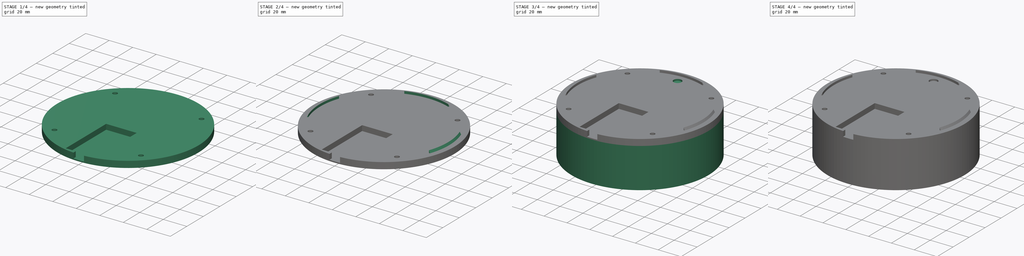
[diagram: build sequence overview — one tinted view per stage of 4, left to right]
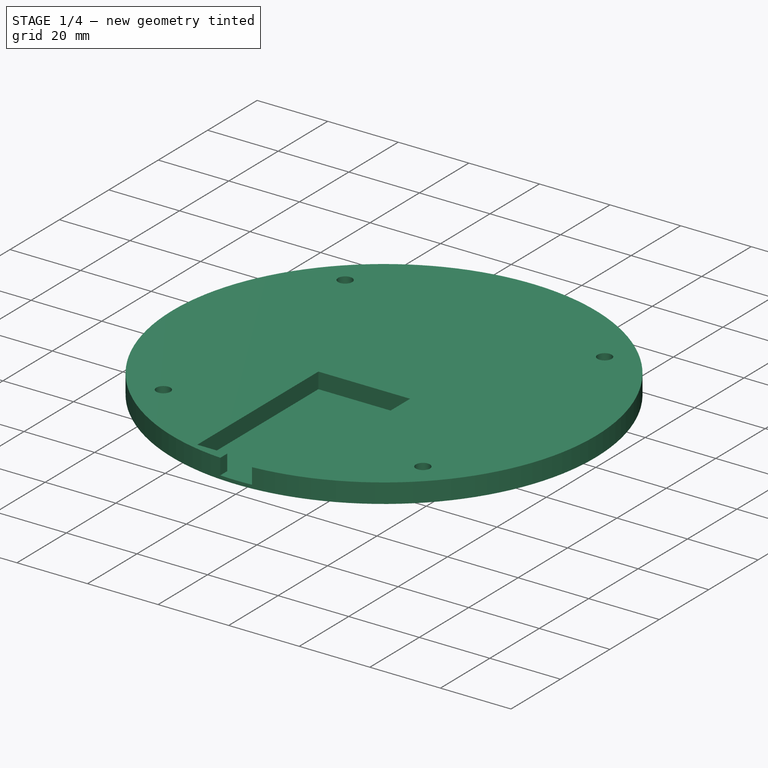
[diagram: stage 1 of 4 — iso view after this stage's code; geometry added in this stage tinted green]
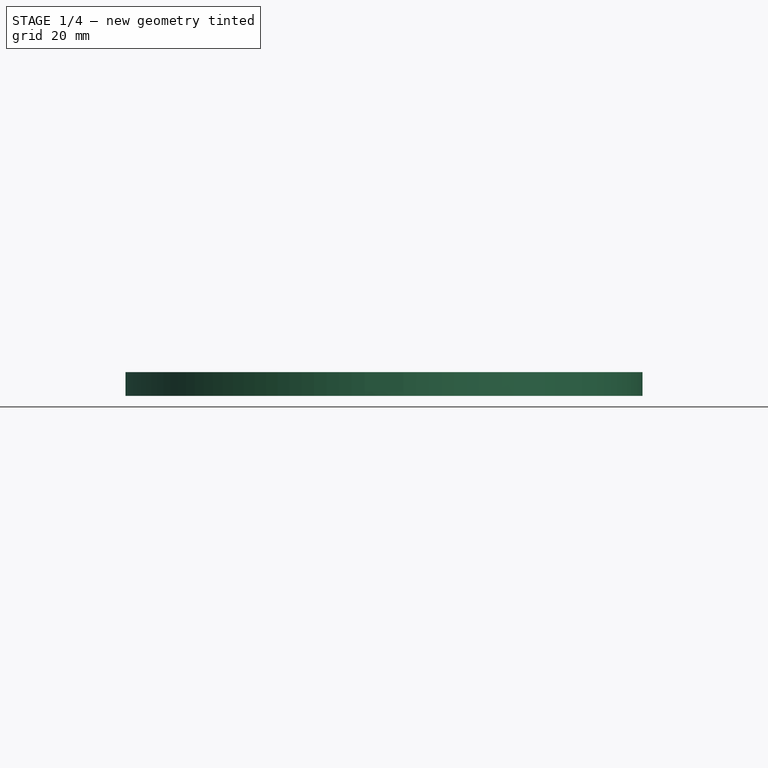
[diagram: stage 1 of 4 — front view after this stage's code; geometry added in this stage tinted green]
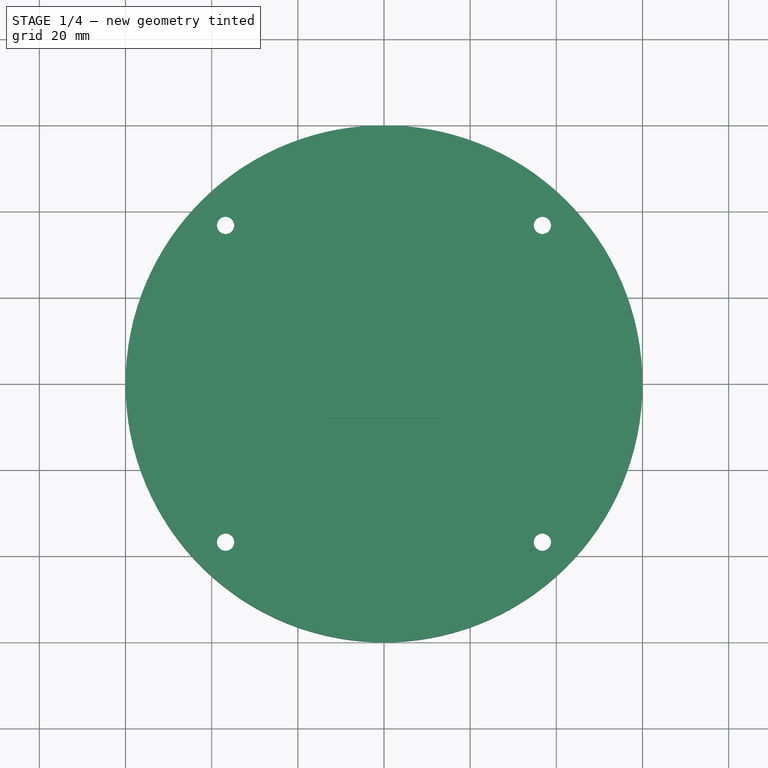
[diagram: stage 1 of 4 — top view after this stage's code; geometry added in this stage tinted green]
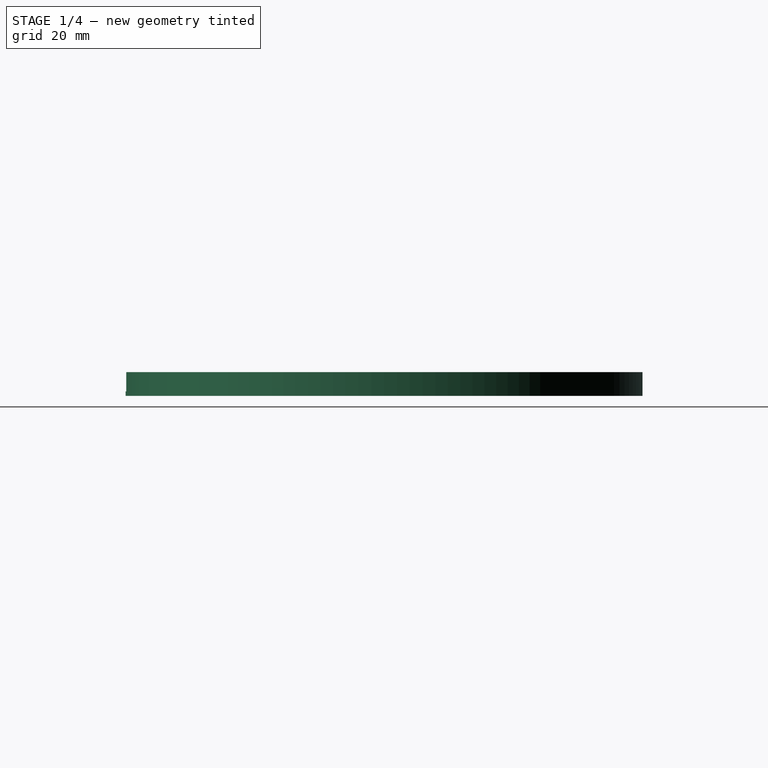
[diagram: stage 1 of 4 — right view after this stage's code; geometry added in this stage tinted green]
FCSTD DOCUMENT  (FreeCAD 0.18R16131 (Git))
Label: ledcircle
License: All rights reserved
LicenseURL: http://en.wikipedia.org/wiki/All_rights_reserved
objects: Sketcher::SketchObject×11, PartDesign::Pad×5, PartDesign::Pocket×4, PartDesign::PolarPattern×3, PartDesign::Body×2, PartDesign::Hole×1, PartDesign::ShapeBinder×1, PartDesign::Groove×1, App::Part×1
note: 39 computed .brp shape members not serialized (recipe doc carries the construction recipe); baked Part::Feature solids carry a one-line shape summary decoded from their .brp

FEATURE [Sketcher::SketchObject] Sketch
  MapMode = 5
  Support = -> [XY_Plane]
  sketch-geometry (1):
    g0: Circle CenterX=0 CenterY=0 CenterZ=0 NormalX=0 NormalY=0 NormalZ=1 AngleXU=0 Radius=60
  constraints (2):
    c: Coincident(g0,g-1)
    c: Diameter(g0) = 120
FEATURE [PartDesign::Pad] Pad
  Length = 5.5
  Length2 = 100
  Profile = -> Sketch
  Type = 0
FEATURE [Sketcher::SketchObject] Sketch001
  ExternalGeometry = -> [Pad]
  MapMode = 5
  Placement = pos=(0,0,5.5) rot=(0,0,1;0rad)
  Support = -> [Pad]
  sketch-geometry (12):
    g0: LineSegment StartX=-13 StartY=-8 StartZ=0 EndX=13 EndY=-8 EndZ=0
    g1: LineSegment StartX=13 StartY=-8 StartZ=0 EndX=13 EndY=-57 EndZ=0
    g2: LineSegment StartX=-13 StartY=-57 StartZ=0 EndX=-13 EndY=-8 EndZ=0
    g3: GeomPoint X=0 Y=-8 Z=0
    g4: GeomPoint X=0 Y=-60 Z=0
    g5: LineSegment [constr] StartX=-4.5 StartY=-57 StartZ=0 EndX=4.5 EndY=-57 EndZ=0
    g6: LineSegment StartX=4.5 StartY=-57 StartZ=0 EndX=4.5 EndY=-60 EndZ=0
    g7: LineSegment StartX=4.5 StartY=-60 StartZ=0 EndX=-4.5 EndY=-60 EndZ=0
    g8: LineSegment StartX=-4.5 StartY=-60 StartZ=0 EndX=-4.5 EndY=-57 EndZ=0
    g9: GeomPoint X=0 Y=-60 Z=0
    g10: LineSegment StartX=-4.5 StartY=-57 StartZ=0 EndX=-13 EndY=-57 EndZ=0
    g11: LineSegment StartX=4.5 StartY=-57 StartZ=0 EndX=13 EndY=-57 EndZ=0
  constraints (30):
    c: Coincident(g0,g1)
    c: Coincident(g10,g2)
    c: Coincident(g2,g0)
    c: Horizontal(g0)
    c: Vertical(g1)
    c: Vertical(g2)
    c: DistanceX(g0,g0) = 26
    c: DistanceY(g1,g1) = 49
    c: PointOnObject(g3,g-2)
    c: Symmetric(g0,g0,g3)
    c: PointOnObject(g4,g-2)
    c: PointOnObject(g4,g-3)
    c: DistanceY(g4,g1) = 3
    c: Coincident(g5,g6)
    c: Coincident(g6,g7)
    c: Coincident(g7,g8)
    c: Horizontal(g5)
    c: Horizontal(g7)
    c: Vertical(g6)
    c: Vertical(g8)
    c: PointOnObject(g9,g-2)
    c: Symmetric(g7,g7,g9)
    c: Coincident(g11,g6)
    c: Coincident(g11,g1)
    c: Horizontal(g11)
    c: Coincident(g8,g10)
    c: Coincident(g5,g8)
    c: Horizontal(g10)
    c: PointOnObject(g4,g7)
    c: DistanceX(g5,g5) = 9
FEATURE [PartDesign::Pocket] Pocket
  BaseFeature = -> Pad
  Length = 4.5
  Length2 = 100
  Profile = -> Sketch001
  Type = 0
FEATURE [Sketcher::SketchObject] Sketch002
  ExternalGeometry = -> [Pocket]
  MapMode = 5
  Placement = pos=(0,0,0) rot=(1,0,0;3.14159rad)
  Support = -> [Pocket]
  sketch-geometry (3):
    g0: Circle CenterX=-36.7696 CenterY=36.7696 CenterZ=0 NormalX=0 NormalY=0 NormalZ=1 AngleXU=0 Radius=3.5
    g1: LineSegment [constr] StartX=-42.4264 StartY=42.4264 StartZ=0 EndX=-36.7696 EndY=36.7696 EndZ=0
    g2: LineSegment [constr] StartX=-36.7696 StartY=36.7696 StartZ=0 EndX=0 EndY=0 EndZ=0
  constraints (8):
    c: PointOnObject(g1,g-3)
    c: Coincident(g1,g0)
    c: Perpendicular(g-3,g1)
    c: Distance(g1) = 8
    c: Diameter(g0) = 7
    c: Coincident(g2,g0)
    c: Coincident(g2,g-1)
    c: Angle(g-1,g2) = 2.35619
FEATURE [PartDesign::Hole] Hole
  BaseFeature = -> Pocket
  Depth = 25
  DepthType = 1
  Diameter = 4
  DrillPoint = 1
  DrillPointAngle = 118
  HoleCutCountersinkAngle = 90
  HoleCutDepth = 4
  HoleCutDiameter = 7
  HoleCutType = 1
  ModelActualThread = false
  Profile = -> Sketch002
  Tapered = false
  TaperedAngle = 90
  ThreadAngle = 0
  ThreadClass = 0
  ThreadCutOffInner = 0
  ThreadCutOffOuter = 0
  ThreadDirection = 0
  ThreadFit = 0
  ThreadPitch = 0
  ThreadSize = 0
  ThreadType = 0
  Threaded = false
FEATURE [PartDesign::PolarPattern] PolarPattern
  Angle = 360
  Axis = -> Sketch002 [N_Axis]
  BaseFeature = -> Hole
  Occurrences = 4
  Originals = -> [Hole]
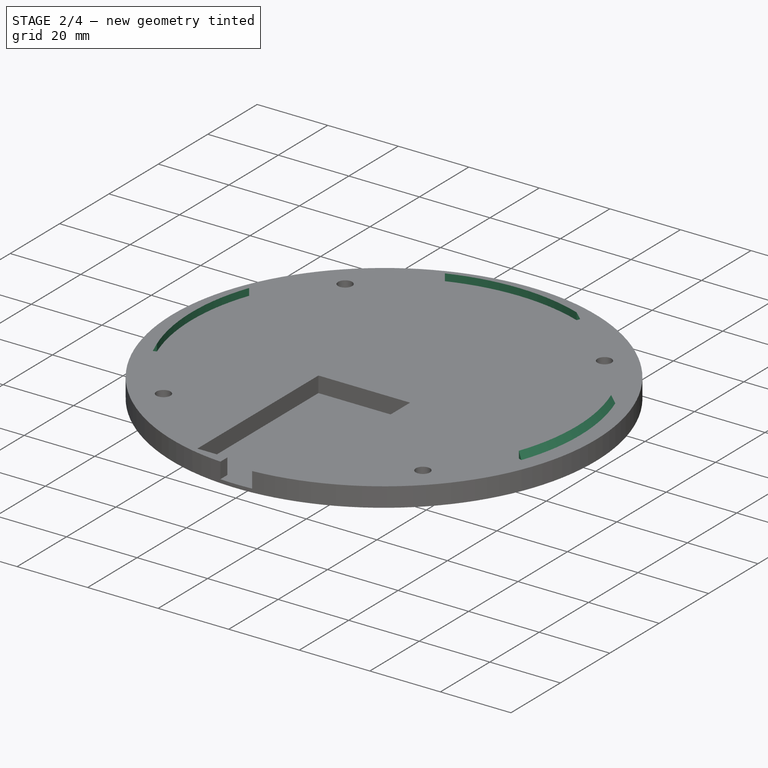
[diagram: stage 2 of 4 — iso view after this stage's code; geometry added in this stage tinted green]
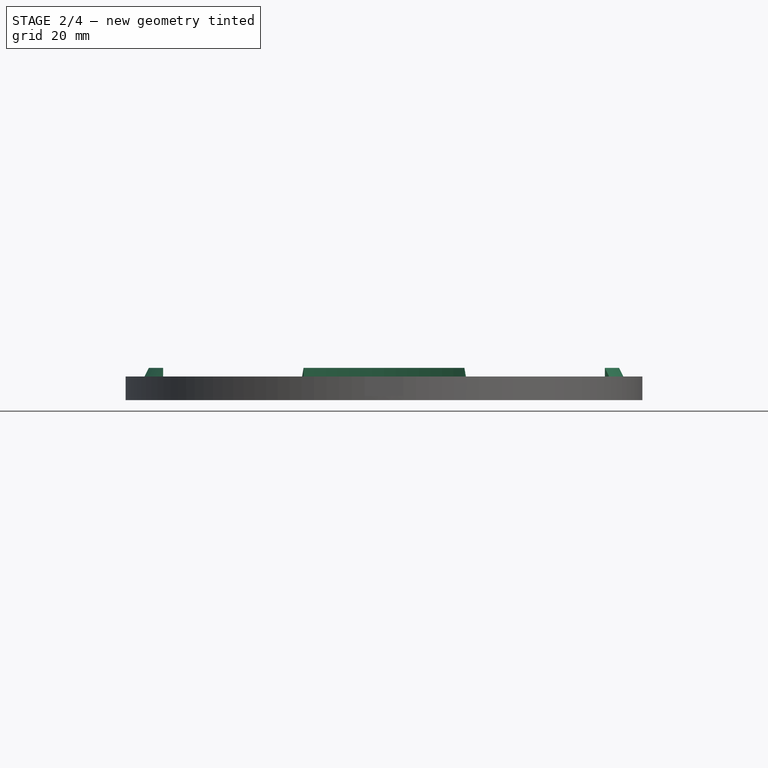
[diagram: stage 2 of 4 — front view after this stage's code; geometry added in this stage tinted green]
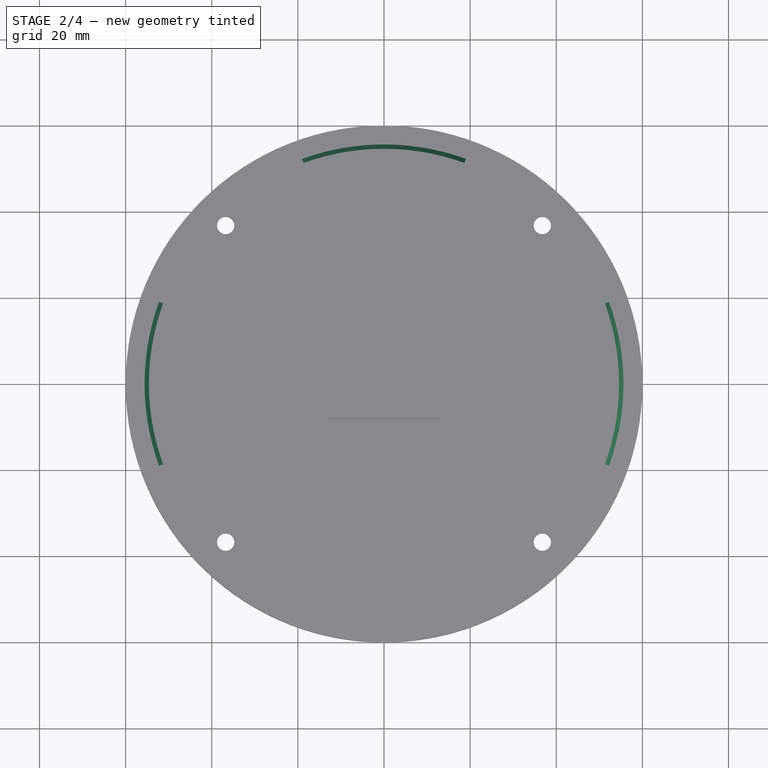
[diagram: stage 2 of 4 — top view after this stage's code; geometry added in this stage tinted green]
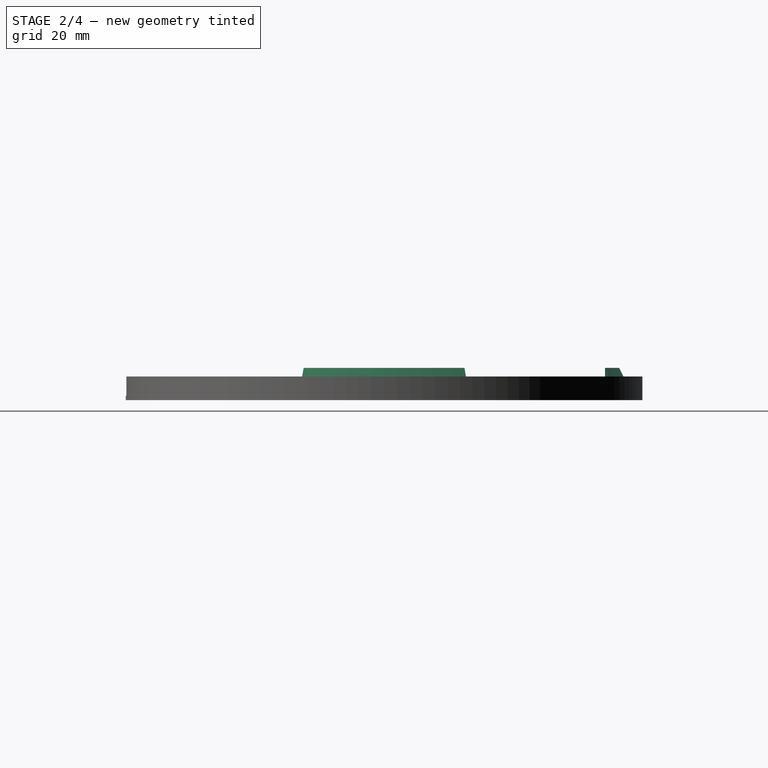
[diagram: stage 2 of 4 — right view after this stage's code; geometry added in this stage tinted green]
FEATURE [PartDesign::Body] Body001  label="led_wall"
  Group = -> [ReferencePolarPattern,Sketch003,Pad001,Sketch004,Pad002,Sketch005,Pad003,Sketch006,Pocket001,PolarPattern001]
  Origin = -> Origin002
  Placement = pos=(-3e-15,0,21) rot=(0.707107,-0.707107,0;3.14159rad)
  Tip = -> PolarPattern001
FEATURE [Sketcher::SketchObject] Sketch007
  MapMode = 5
  Placement = pos=(0,0,5.5) rot=(0,0,1;0rad)
  Support = -> [PolarPattern]
  sketch-geometry (4):
    g0: ArcOfCircle CenterX=0 CenterY=0 CenterZ=0 NormalX=0 NormalY=0 NormalZ=1 AngleXU=0 Radius=55.6 StartAngle=5.93412 EndAngle=6.63225
    g1: ArcOfCircle CenterX=0 CenterY=0 CenterZ=0 NormalX=0 NormalY=0 NormalZ=1 AngleXU=0 Radius=54.6 StartAngle=5.93412 EndAngle=6.63225
    g2: LineSegment StartX=52.2469 StartY=19.0163 StartZ=0 EndX=51.3072 EndY=18.6743 EndZ=0
    g3: LineSegment StartX=52.2469 StartY=-19.0163 StartZ=0 EndX=51.3072 EndY=-18.6743 EndZ=0
  constraints (12):
    c: Coincident(g0,g-1)
    c: Coincident(g1,g0)
    c: Coincident(g2,g0)
    c: Coincident(g2,g1)
    c: Coincident(g3,g0)
    c: Coincident(g3,g1)
    c: PointOnObject(g0,g3)
    c: PointOnObject(g0,g2)
    c: Angle(g3,g2) = 0.698132
    c: Distance(g3) = 1
    c: Distance(g0,g0) = 55.6
    c: Angle(g-1,g2) = 0.349066
FEATURE [PartDesign::Pad] Pad004
  BaseFeature = -> PolarPattern
  Length = 2
  Length2 = 100
  Profile = -> Sketch007
  Type = 0
FEATURE [Sketcher::SketchObject] Sketch008
  ExternalGeometry = -> [Pad004]
  MapMode = 5
  Placement = pos=(-2.48731e-11,6.83383e-11,0) rot=(-0.123724,0.701674,0.701674;3.38779rad)
  Support = -> [Pad004]
  sketch-geometry (3):
    g0: LineSegment StartX=-55.6 StartY=5.5 StartZ=0 EndX=-54.6 EndY=7.5 EndZ=0
    g1: LineSegment StartX=-54.6 StartY=7.5 StartZ=0 EndX=-55.6 EndY=7.5 EndZ=0
    g2: LineSegment StartX=-55.6 StartY=5.5 StartZ=0 EndX=-55.6 EndY=7.5 EndZ=0
  constraints (7):
    c: Coincident(g0,g-3)
    c: Coincident(g0,g-4)
    c: Horizontal(g1)
    c: Coincident(g2,g0)
    c: Coincident(g2,g1)
    c: Vertical(g2)
    c: Coincident(g1,g0)
FEATURE [PartDesign::Groove] Groove
  Angle = 360
  Axis = (0,0,1)
  Base = (-2.48731e-11,6.83383e-11,0)
  BaseFeature = -> Pad004
  Profile = -> Sketch008
  ReferenceAxis = -> Sketch008 [V_Axis]
FEATURE [PartDesign::PolarPattern] PolarPattern002
  Angle = 180
  Axis = -> Z_Axis
  BaseFeature = -> Groove
  Occurrences = 3
  Originals = -> [Pad004,Groove]
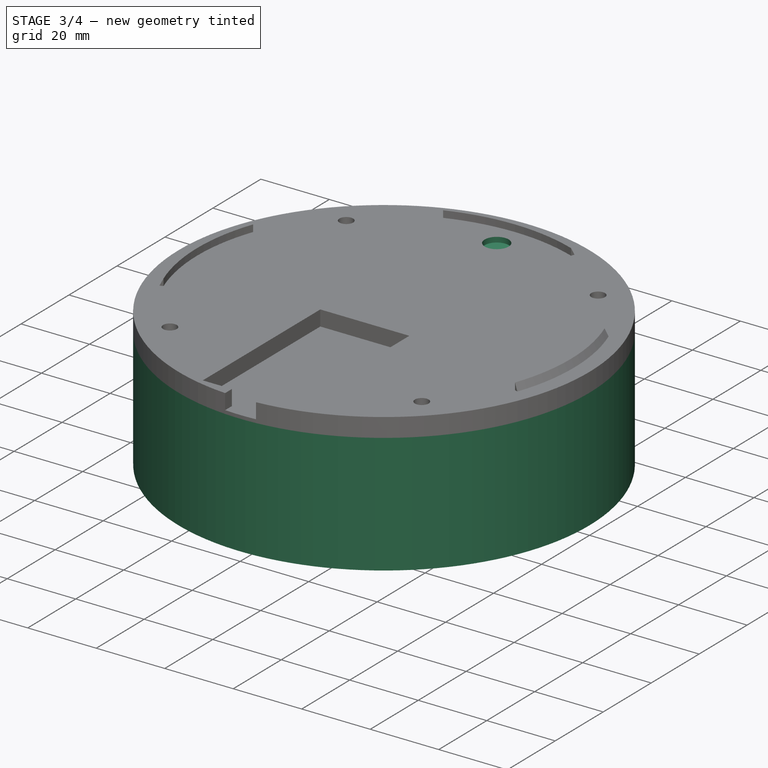
[diagram: stage 3 of 4 — iso view after this stage's code; geometry added in this stage tinted green]
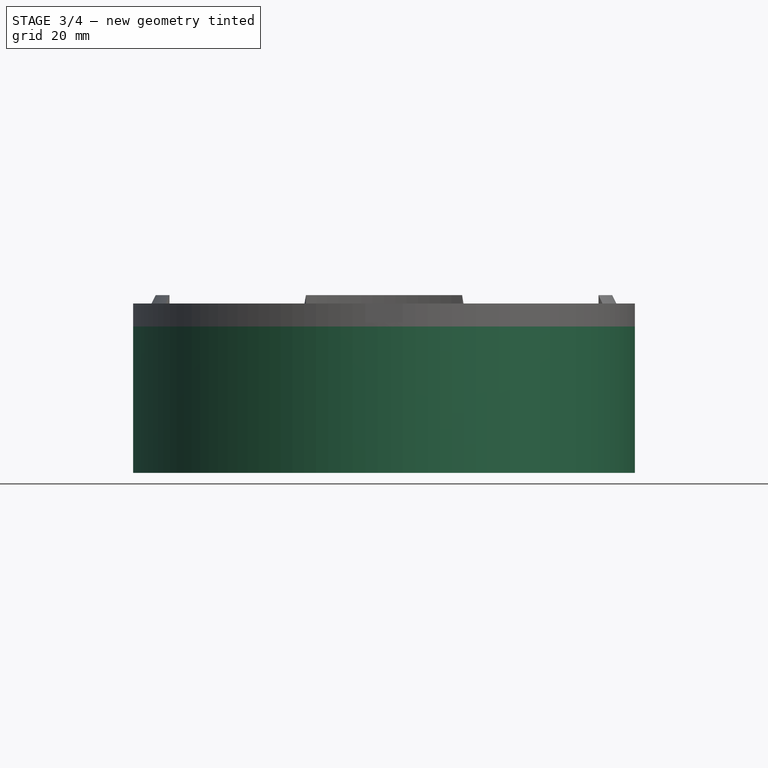
[diagram: stage 3 of 4 — front view after this stage's code; geometry added in this stage tinted green]
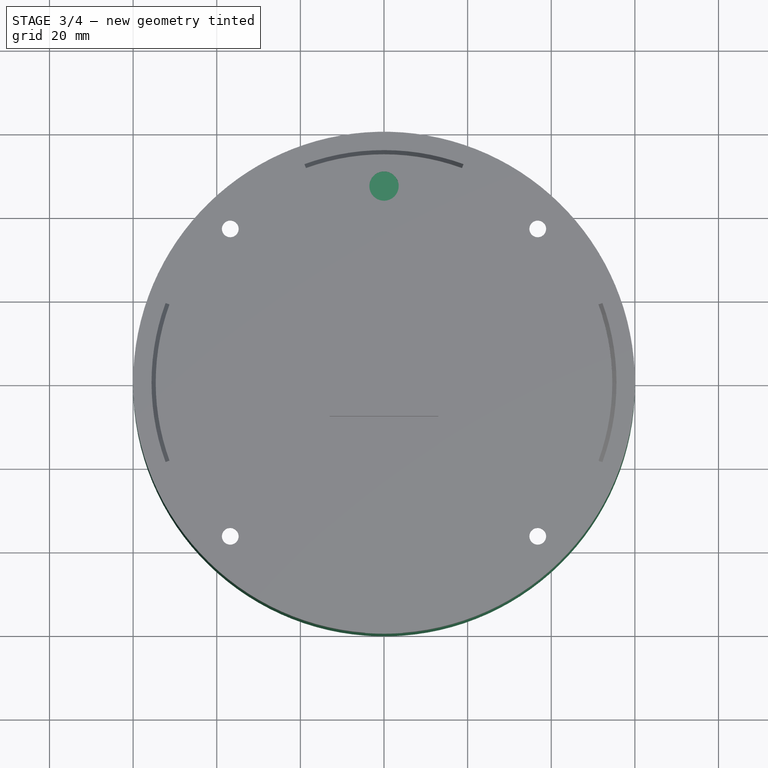
[diagram: stage 3 of 4 — top view after this stage's code; geometry added in this stage tinted green]
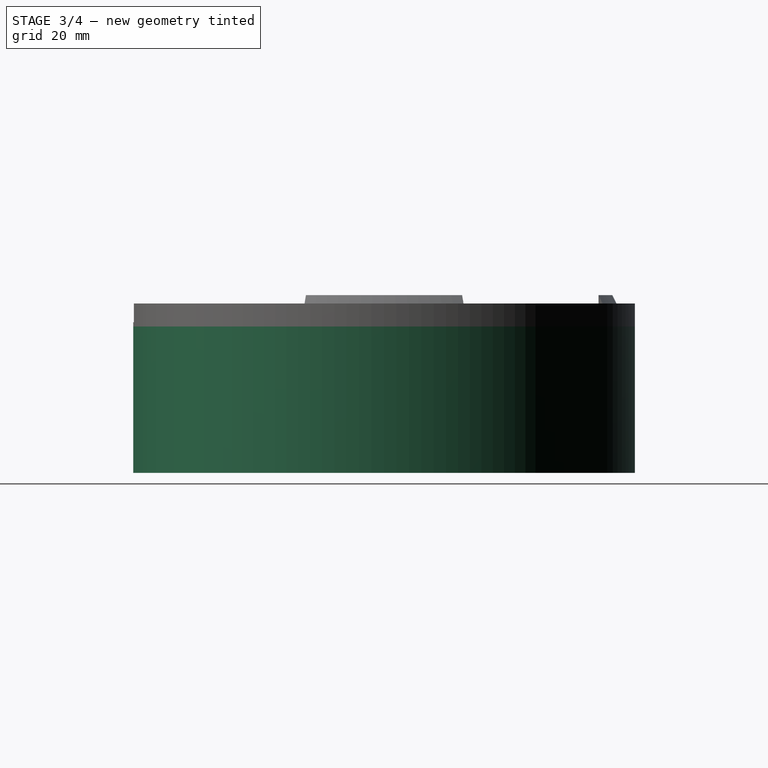
[diagram: stage 3 of 4 — right view after this stage's code; geometry added in this stage tinted green]
FEATURE [PartDesign::ShapeBinder] ReferencePolarPattern
  Support = -> [PolarPattern]
  TraceSupport = false
FEATURE [Sketcher::SketchObject] Sketch003
  MapMode = 5
  Placement = pos=(0,0,0) rot=(1,0,0;3.14159rad)
  Support = -> [ReferencePolarPattern]
  sketch-geometry (5):
    g0: Circle CenterX=0 CenterY=0 CenterZ=0 NormalX=0 NormalY=0 NormalZ=1 AngleXU=0 Radius=60
    g1: LineSegment [constr] StartX=-42.4264 StartY=42.4264 StartZ=0 EndX=-36.7696 EndY=36.7696 EndZ=0
    g2: LineSegment [constr] StartX=0 StartY=0 StartZ=0 EndX=-36.7696 EndY=36.7696 EndZ=0
    g3: Circle CenterX=0 CenterY=0 CenterZ=0 NormalX=0 NormalY=0 NormalZ=1 AngleXU=0 Radius=58.7
    g4: GeomPoint X=-41.5072 Y=41.5072 Z=0
  constraints (12):
    c: Coincident(g0,g-1)
    c: Diameter(g0) = 120
    c: PointOnObject(g1,g0)
    c: Coincident(g2,g1)
    c: Coincident(g2,g0)
    c: Parallel(g2,g1)
    c: Angle(g-1,g2) = 2.35619
    c: Distance(g1) = 8
    c: Coincident(g3,g0)
    c: PointOnObject(g4,g3)
    c: PointOnObject(g4,g1)
    c: Distance(g1,g4) = 1.3
FEATURE [PartDesign::Pad] Pad001
  Length = 35
  Length2 = 100
  Profile = -> Sketch003
  Type = 0
FEATURE [Sketcher::SketchObject] Sketch009
  MapMode = 5
  Placement = pos=(0,0,0) rot=(1,0,0;3.14159rad)
  Support = -> [PolarPattern002]
  sketch-geometry (1):
    g0: Circle CenterX=0 CenterY=-47 CenterZ=0 NormalX=0 NormalY=0 NormalZ=1 AngleXU=0 Radius=2
  constraints (3):
    c: PointOnObject(g0,g-2)
    c: Diameter(g0) = 4
    c: Distance(g-1,g0) = 47
FEATURE [PartDesign::Pocket] Pocket002
  BaseFeature = -> PolarPattern002
  Length = 3
  Length2 = 100
  Profile = -> Sketch009
  Type = 0
FEATURE [Sketcher::SketchObject] Sketch010
  ExternalGeometry = -> [Pocket002]
  MapMode = 5
  Placement = pos=(0,0,4) rot=(1,0,0;3.14159rad)
  Support = -> [Pocket002]
  sketch-geometry (1):
    g0: Circle CenterX=0 CenterY=-47 CenterZ=0 NormalX=0 NormalY=0 NormalZ=1 AngleXU=0 Radius=3.5
  constraints (2):
    c: Coincident(g0,g-3)
    c: Diameter(g0) = 7
FEATURE [PartDesign::Pocket] Pocket003
  BaseFeature = -> Pocket002
  Length = 3
  Length2 = 100
  Profile = -> Sketch010
  Type = 1
FEATURE [PartDesign::Body] Body  label="bottom_plate"
  Group = -> [Sketch,Pad,Sketch001,Pocket,Sketch002,Hole,PolarPattern,Sketch007,Pad004,Sketch008,Groove,PolarPattern002,Sketch009,Pocket002,Sketch010,Pocket003]
  Origin = -> Origin
  Tip = -> Pocket003
FEATURE [App::Part] Part
  Group = -> [Body,Body001]
  Origin = -> Origin001
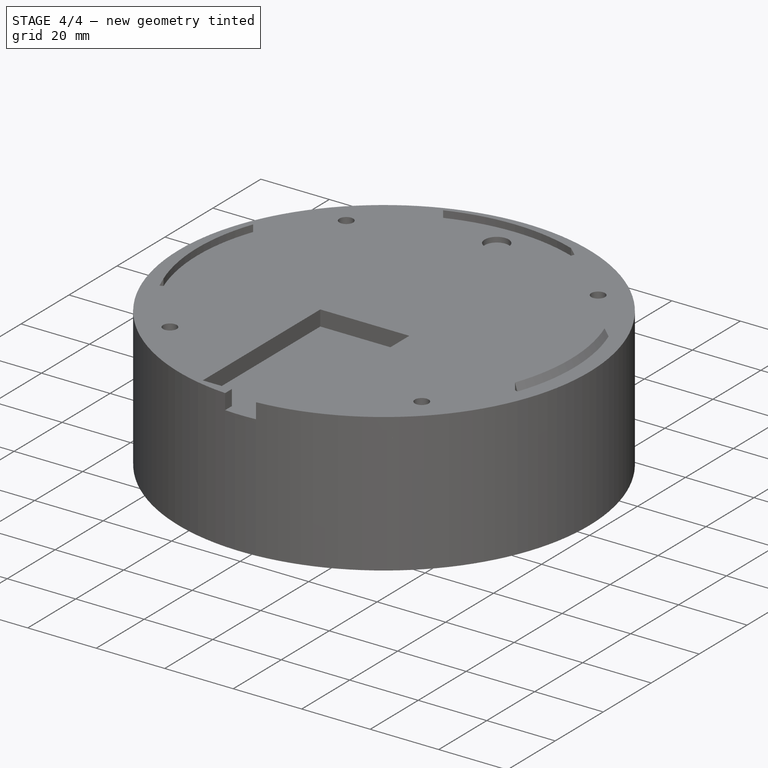
[diagram: stage 4 of 4 — iso view after this stage's code; geometry added in this stage tinted green]
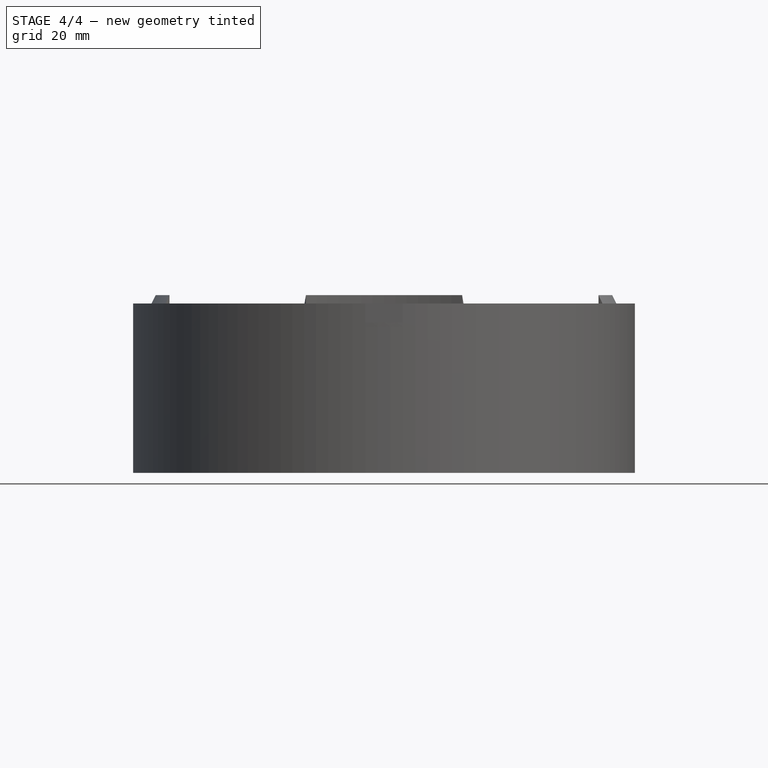
[diagram: stage 4 of 4 — front view after this stage's code; geometry added in this stage tinted green]
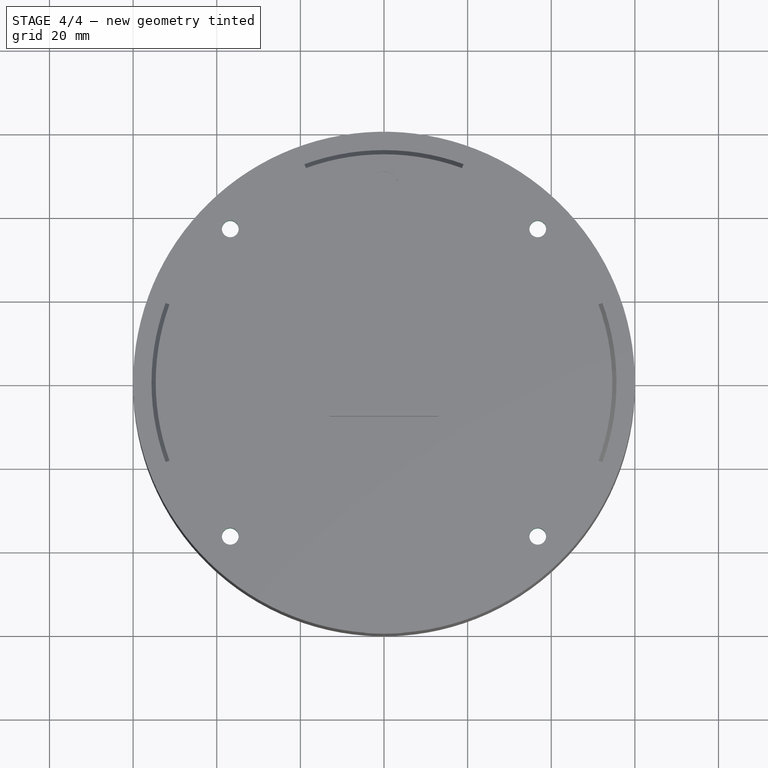
[diagram: stage 4 of 4 — top view after this stage's code; geometry added in this stage tinted green]
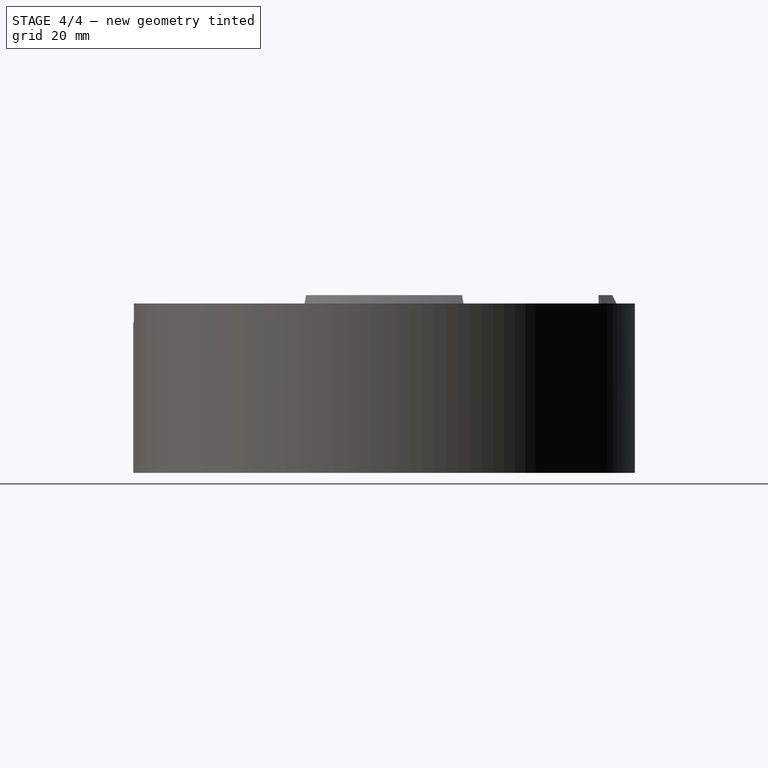
[diagram: stage 4 of 4 — right view after this stage's code; geometry added in this stage tinted green]
FEATURE [Sketcher::SketchObject] Sketch004
  ExternalGeometry = -> [Pad001]
  MapMode = 5
  Placement = pos=(0,0,0) rot=(1,0,0;3.14159rad)
  Support = -> [ReferencePolarPattern]
  sketch-geometry (4):
    g0: Circle CenterX=0 CenterY=0 CenterZ=0 NormalX=0 NormalY=0 NormalZ=1 AngleXU=0 Radius=58.7
    g1: Circle CenterX=0 CenterY=0 CenterZ=0 NormalX=0 NormalY=0 NormalZ=1 AngleXU=0 Radius=55.7
    g2: LineSegment [constr] StartX=58.7 StartY=0 StartZ=0 EndX=55.7 EndY=0 EndZ=0
    g3: GeomPoint X=-58.7 Y=0 Z=0
  constraints (10):
    c: Coincident(g0,g-1)
    c: Coincident(g1,g0)
    c: PointOnObject(g2,g0)
    c: PointOnObject(g2,g1)
    c: Perpendicular(g0,g2)
    c: PointOnObject(g3,g0)
    c: PointOnObject(g3,g-3)
    c: PointOnObject(g3,g-1)
    c: PointOnObject(g2,g-1)
    c: Distance(g2,g0) = 55.7
FEATURE [PartDesign::Pad] Pad002
  BaseFeature = -> Pad001
  Length = 7
  Length2 = 100
  Profile = -> Sketch004
  Type = 0
FEATURE [Sketcher::SketchObject] Sketch005
  ExternalGeometry = -> [Pad002]
  MapMode = 5
  Placement = pos=(0,0,0) rot=(1,0,0;3.14159rad)
  Support = -> [ReferencePolarPattern]
  sketch-geometry (7):
    g0: Circle CenterX=-36.7696 CenterY=36.7696 CenterZ=0 NormalX=0 NormalY=0 NormalZ=1 AngleXU=0 Radius=2
    g1: LineSegment [constr] StartX=-36.7696 StartY=36.7696 StartZ=0 EndX=0 EndY=0 EndZ=0
    g2: ArcOfCircle CenterX=-36.7696 CenterY=36.7696 CenterZ=0 NormalX=0 NormalY=0 NormalZ=1 AngleXU=0 Radius=5 StartAngle=3.12571 EndAngle=7.86987
    g3: GeomPoint X=-33.234 Y=33.234 Z=0
    g4: GeomPoint X=-35.3553 Y=35.3553 Z=0
    g5: ArcOfCircle CenterX=0 CenterY=-2.3e-14 CenterZ=0 NormalX=0 NormalY=0 NormalZ=1 AngleXU=0 Radius=55.7 StartAngle=2.2937 EndAngle=2.41869
    g6: LineSegment [constr] StartX=-39.3858 StartY=39.3858 StartZ=0 EndX=-36.7696 EndY=36.7696 EndZ=0
  constraints (19):
    c: Coincident(g1,g0)
    c: Coincident(g1,g-1)
    c: Distance(g1) = 52
    c: Angle(g-1,g1) = 2.35619
    c: Coincident(g2,g0)
    c: PointOnObject(g2,g-3)
    c: PointOnObject(g2,g-3)
    c: PointOnObject(g3,g2)
    c: PointOnObject(g3,g1)
    c: PointOnObject(g4,g0)
    c: PointOnObject(g4,g1)
    c: Distance(g4,g3) = 3
    c: Distance(g0,g4) = 2
    c: Coincident(g5,g2)
    c: Coincident(g5,g2)
    c: PointOnObject(g5,g-2)
    c: PointOnObject(g6,g-3)
    c: Parallel(g6,g1)
    c: Coincident(g6,g0)
FEATURE [PartDesign::Pad] Pad003
  BaseFeature = -> Pad002
  Length = 7
  Length2 = 100
  Profile = -> Sketch005
  Type = 0
FEATURE [Sketcher::SketchObject] Sketch006
  ExternalGeometry = -> [Pad003]
  MapMode = 5
  Placement = pos=(0,0,-7) rot=(1,0,0;3.14159rad)
  Support = -> [Pad003]
  sketch-geometry (9):
    g0: LineSegment StartX=-40.8406 StartY=37.8604 StartZ=0 EndX=-39.7498 EndY=33.7893 EndZ=0
    g1: LineSegment StartX=-39.7498 StartY=33.7893 StartZ=0 EndX=-35.6787 EndY=32.6985 EndZ=0
    g2: LineSegment StartX=-35.6787 StartY=32.6985 StartZ=0 EndX=-32.6985 EndY=35.6787 EndZ=0
    g3: LineSegment StartX=-32.6985 StartY=35.6787 StartZ=0 EndX=-33.7893 EndY=39.7498 EndZ=0
    g4: LineSegment StartX=-33.7893 StartY=39.7498 StartZ=0 EndX=-37.8604 EndY=40.8406 EndZ=0
    g5: LineSegment StartX=-37.8604 StartY=40.8406 StartZ=0 EndX=-40.8406 EndY=37.8604 EndZ=0
    g6: Circle [constr] CenterX=-36.7696 CenterY=36.7696 CenterZ=0 NormalX=0 NormalY=0 NormalZ=1 AngleXU=0 Radius=4.21466
    g7: LineSegment [constr] StartX=-39.3858 StartY=39.3858 StartZ=0 EndX=-39.3505 EndY=39.3505 EndZ=0
    g8: LineSegment [constr] StartX=-39.3505 StartY=39.3505 StartZ=0 EndX=-36.7696 EndY=36.7696 EndZ=0
  constraints (21):
    c: Coincident(g0,g1)
    c: Coincident(g1,g2)
    c: Coincident(g2,g3)
    c: Coincident(g3,g4)
    c: Coincident(g4,g5)
    c: Coincident(g5,g0)
    c: Equal(g0, g1-g5) x5
    c: PointOnObject(g0,g6)
    c: PointOnObject(g1,g6)
    c: PointOnObject(g2,g6)
    c: PointOnObject(g3,g6)
    c: PointOnObject(g4,g6)
    c: PointOnObject(g5,g6)
    c: Coincident(g6,g-3)
    c: PointOnObject(g7,g-4)
    c: Symmetric(g5,g5,g7)
    c: Perpendicular(g-4,g7)
    c: Perpendicular(g7,g5)
    c: Coincident(g8,g7)
    c: Coincident(g8,g6)
    c: Distance(g8) = 3.65
FEATURE [PartDesign::Pocket] Pocket001
  BaseFeature = -> Pad003
  Length = 4
  Length2 = 100
  Profile = -> Sketch006
  Type = 0
FEATURE [PartDesign::PolarPattern] PolarPattern001
  Angle = 360
  Axis = -> Sketch005 [N_Axis]
  BaseFeature = -> Pocket001
  Occurrences = 4
  Originals = -> [Pad003,Pocket001]
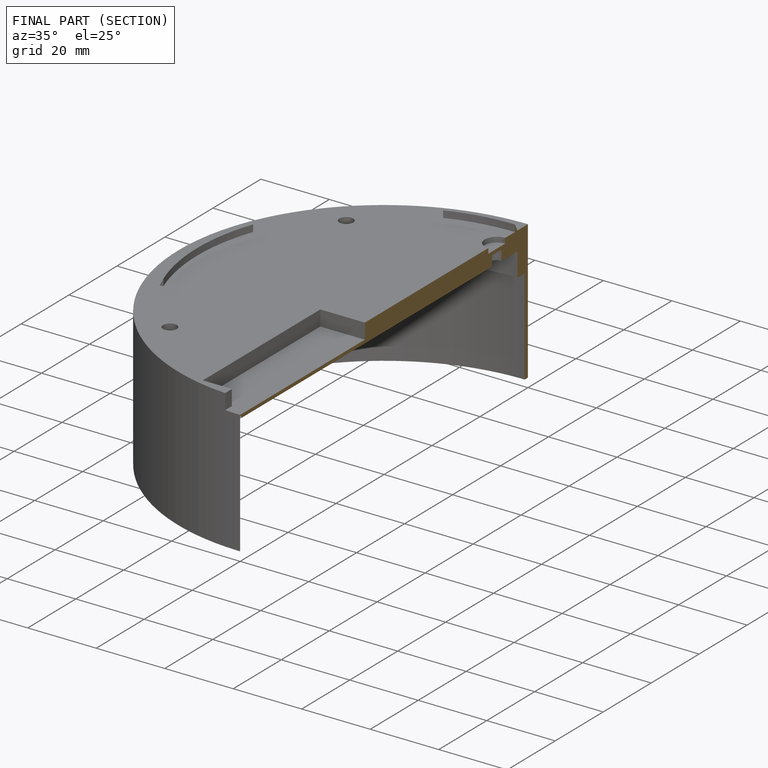
[diagram: finished part — half-section view (interior)]
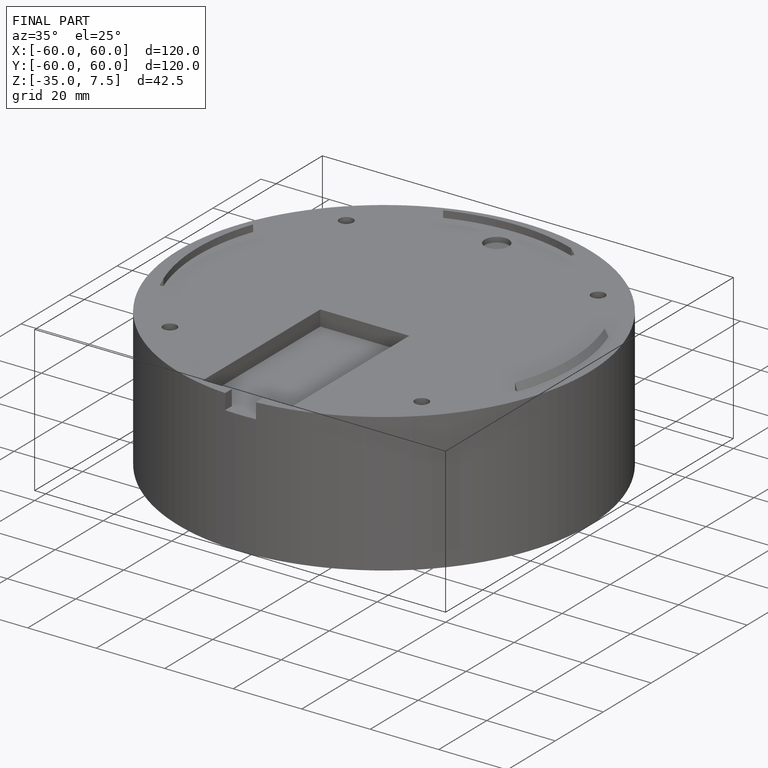
[diagram: finished part — iso view with bounding-box wireframe]
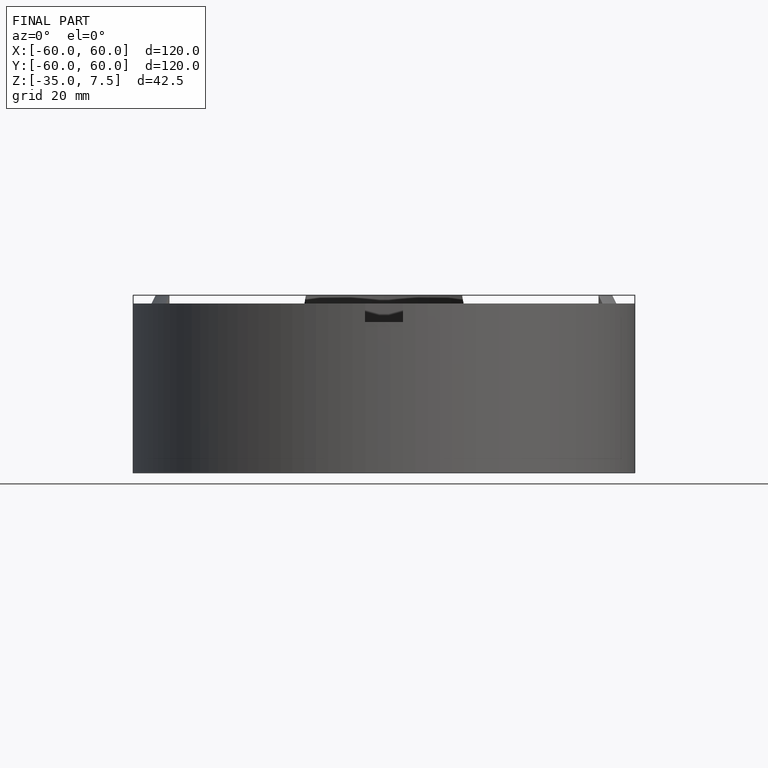
[diagram: finished part — front view with bounding-box wireframe]
